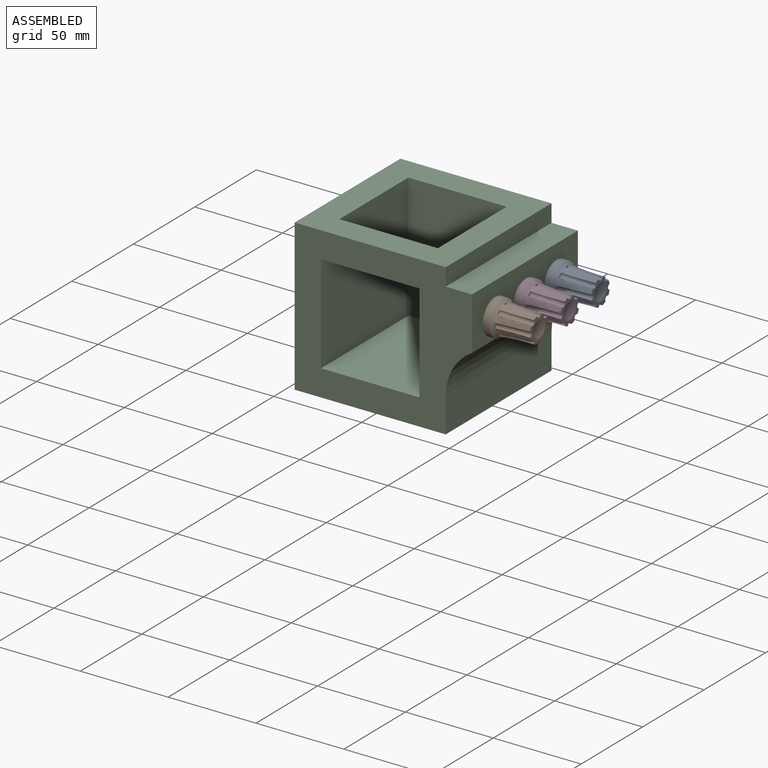
[diagram: assembled view]
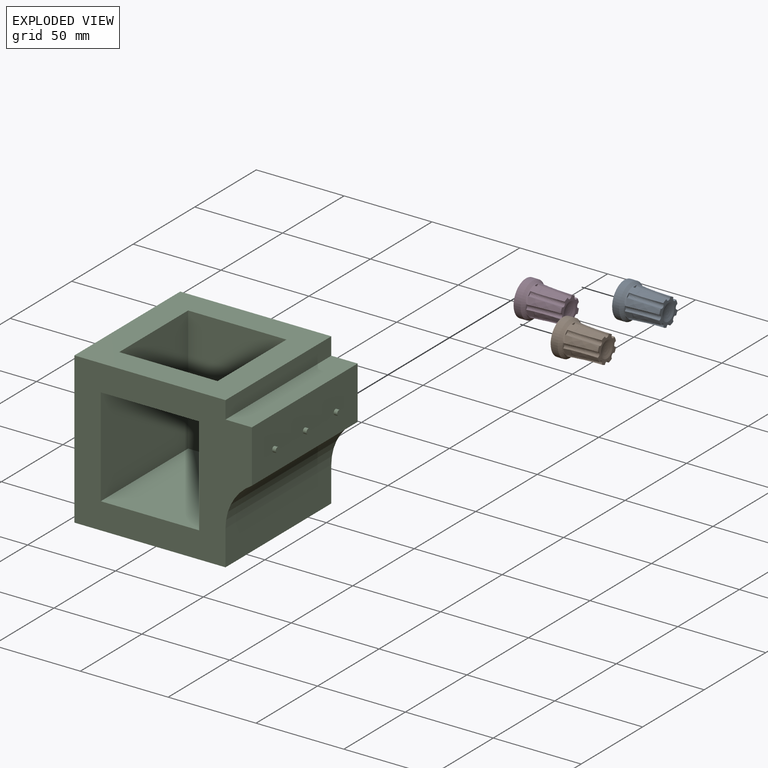
[diagram: exploded view]
GUIDED TOUR — MATED ASSEMBLY (Onshape document 9b8ae249166d23ae19b2d412, AutoMate assembly 9b8ae249166d23ae19b2d412_449f616fcffbd44381068511_5d4bd8179f84fa61b3cc5c4b_default)

This assembly has 4 components, labeled P0..P3 below (a component is one placed occurrence of a part; the same part can appear more than once), held together by 3 mates. A mate is a constraint between two components; its type names the relative motion it leaves free:
  REVOLUTE — leaves rotation about the listed axis free (a hinge).
Axis/direction vectors are unit vectors and 'through' points are millimeter coordinates, both in the assembly's world frame.

MATES
  1. REVOLUTE "Revolute 2": P2 <-> P1, axis (1.000, 0.000, 0.000) through (60.00, -25.00, 15.00) mm
  2. REVOLUTE "Revolute 3": P2 <-> P3, axis (1.000, 0.000, 0.000) through (58.00, 0.00, 15.00) mm
  3. REVOLUTE "Revolute 1": P2 <-> P0, axis (1.000, 0.000, 0.000) through (58.00, 25.00, 15.00) mm

ASSEMBLY ORDER
  1. P3 — the base component [order verified]
  2. P1 [order verified]
  3. P0 [order verified]
  4. P2 [order verified]
Order-tag legend:
  [order verified] — this step's position reverses a verified removal order: the component was checked to insert without passing through the ones already placed.

Of the 4 components, 1 carries the full construction recipe — the FeatureScript program that regenerates the part's solid from scratch; the rest are supplied as boundary geometry only.
Each toured component is shown spotlighted twice — in the assembled view, then in the exploded view, where a leader line traces a displaced component back to its assembled socket (saturated green if recipe-attached, orange if geometry-only; every other component desaturated gray) — followed by its recipe or geometry summary and the mates that hold it.
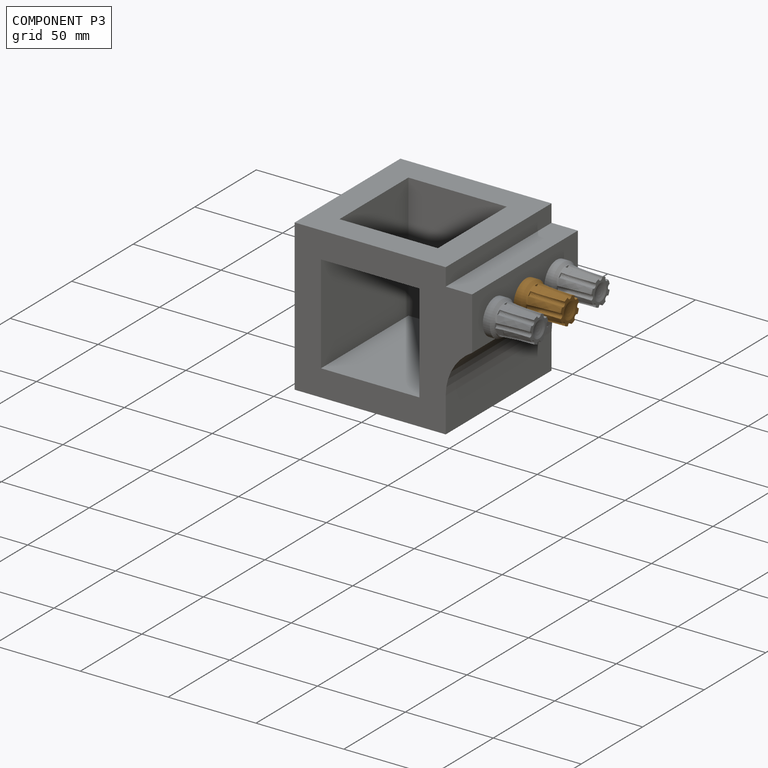
[diagram: component P3 — assembled]
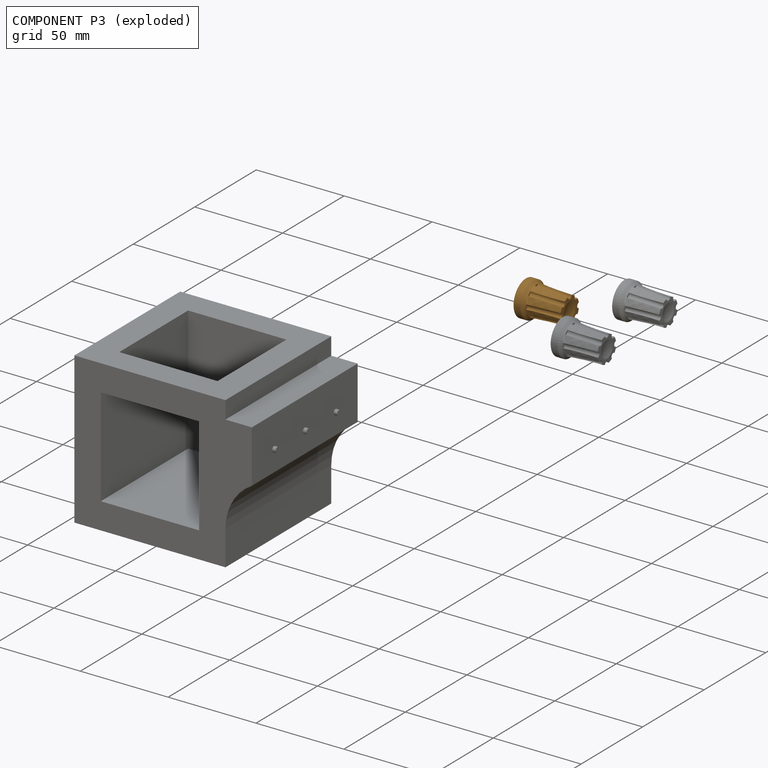
[diagram: component P3 — exploded]
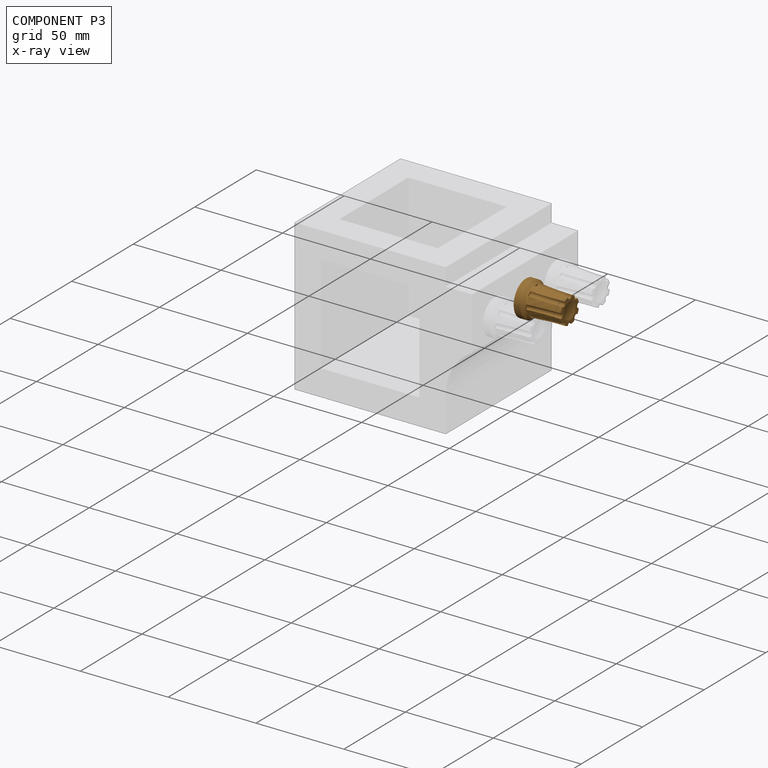
[diagram: component P3 — x-ray view]
COMPONENT P3 — geometry summary (no construction recipe available for this part):
  bounding box: 25.0 x 20.0 x 20.0 mm
  B-rep topology: 1 solid, 26 faces, 135 edges
  volume: 5079 mm^3 (51% of its bounding box)
  symmetry: 4-fold rotationally symmetric about the z axis; mirror-symmetric across its x mid-plane, y mid-plane
Held by: REVOLUTE mate "Revolute 3" to P2.
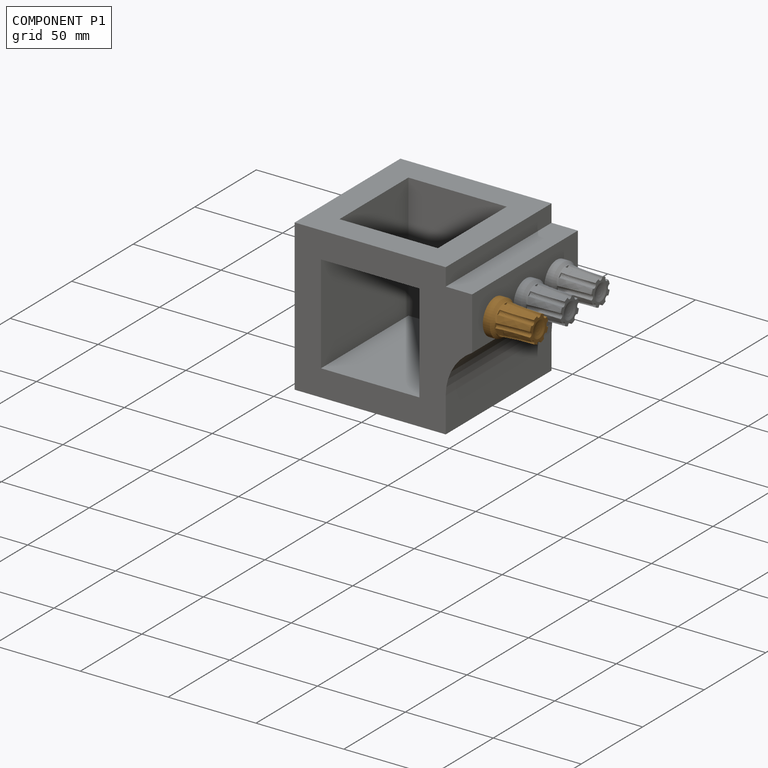
[diagram: component P1 — assembled]
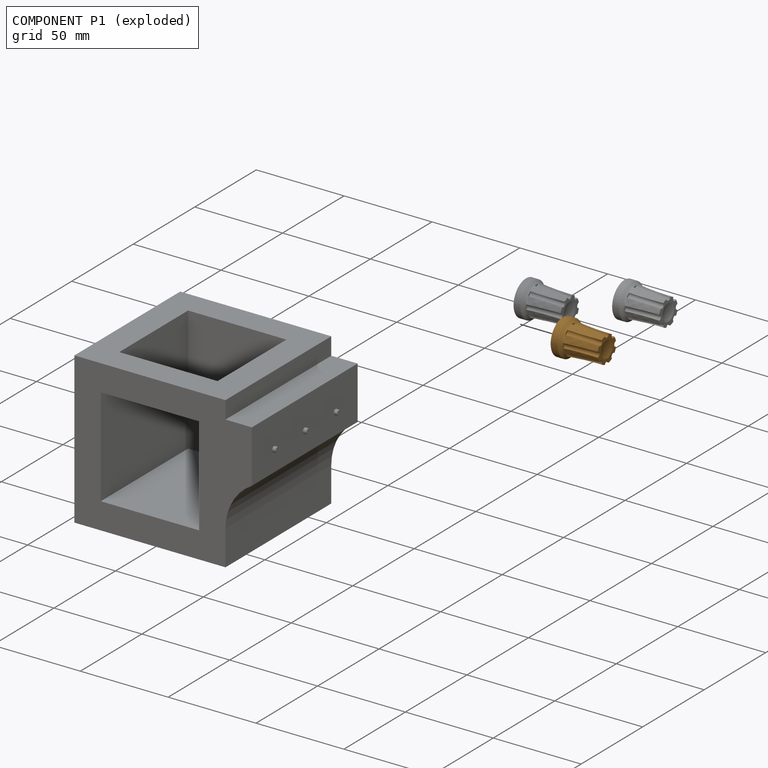
[diagram: component P1 — exploded]
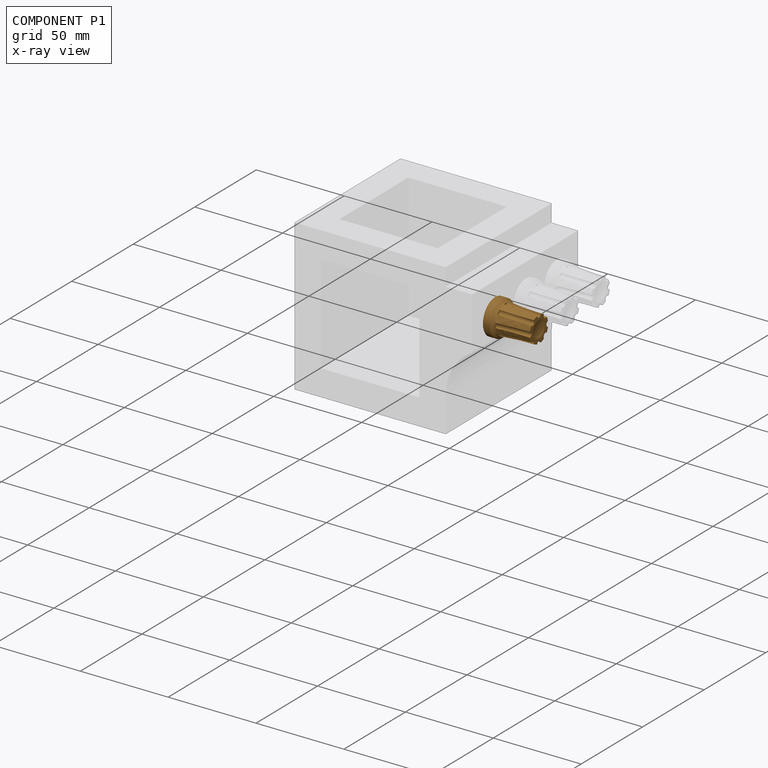
[diagram: component P1 — x-ray view]
COMPONENT P1 — geometry summary (no construction recipe available for this part):
  bounding box: 25.0 x 20.0 x 20.0 mm
  B-rep topology: 1 solid, 26 faces, 135 edges
  volume: 5079 mm^3 (51% of its bounding box)
  symmetry: 4-fold rotationally symmetric about the z axis; mirror-symmetric across its x mid-plane, y mid-plane
Held by: REVOLUTE mate "Revolute 2" to P2.
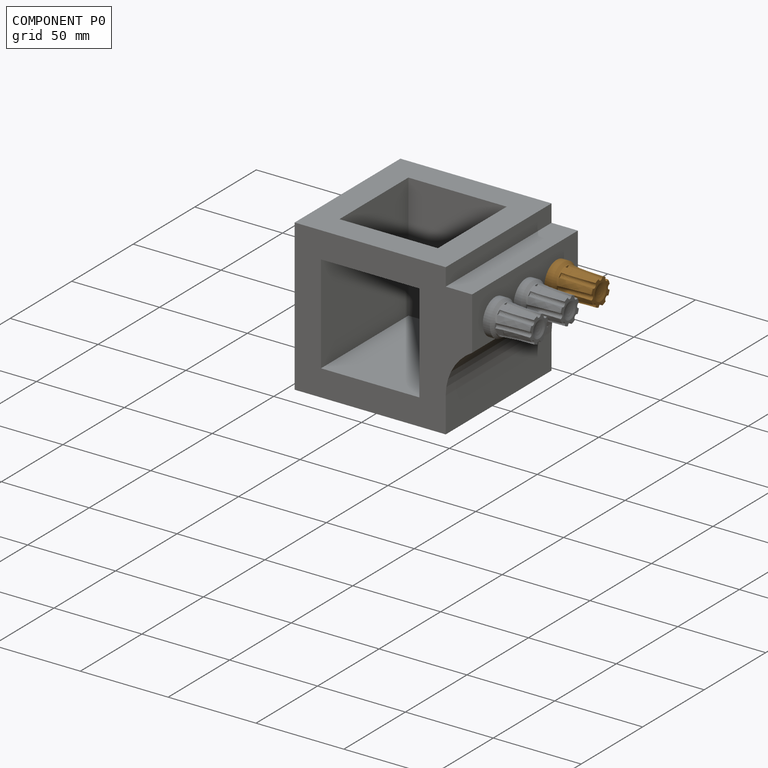
[diagram: component P0 — assembled]
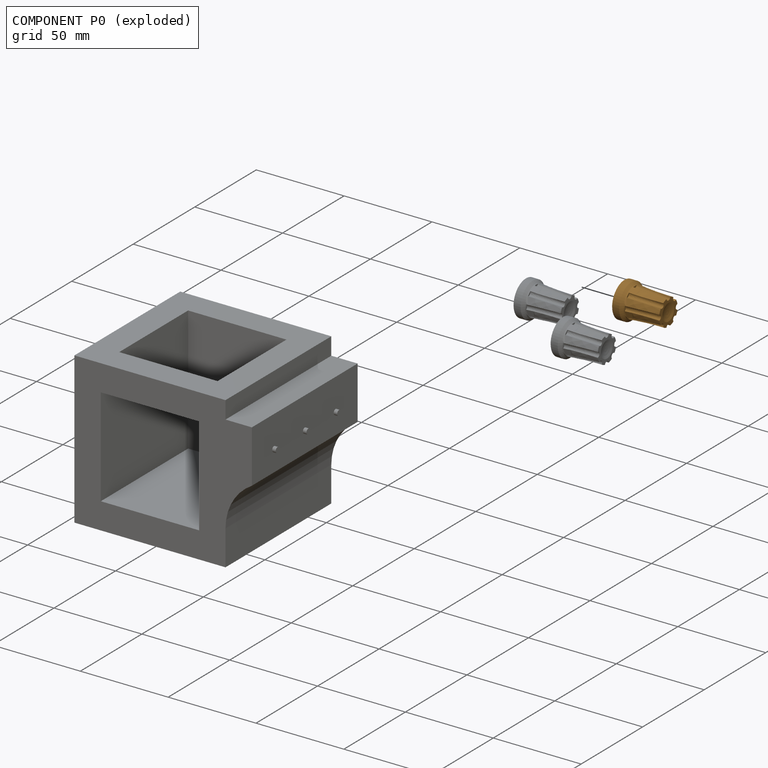
[diagram: component P0 — exploded]
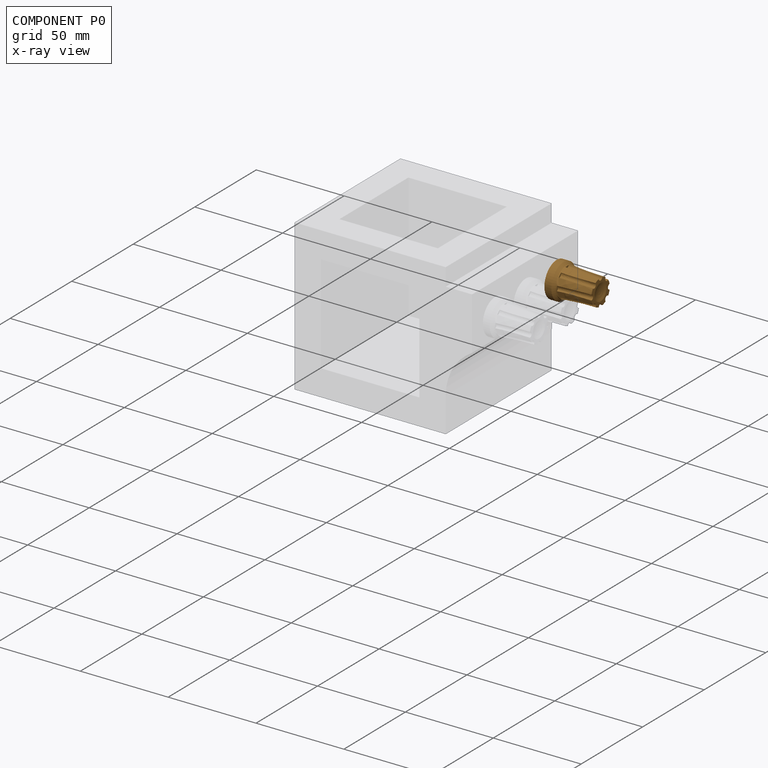
[diagram: component P0 — x-ray view]
COMPONENT P0 — geometry summary (no construction recipe available for this part):
  bounding box: 25.0 x 20.0 x 20.0 mm
  B-rep topology: 1 solid, 26 faces, 135 edges
  volume: 5079 mm^3 (51% of its bounding box)
  symmetry: 4-fold rotationally symmetric about the z axis; mirror-symmetric across its x mid-plane, y mid-plane
Held by: REVOLUTE mate "Revolute 1" to P2.
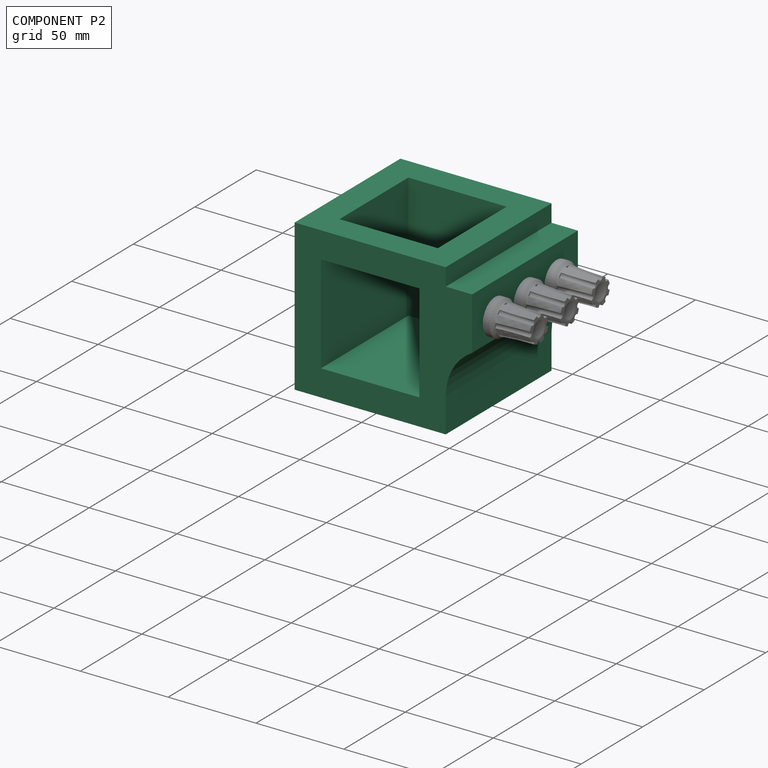
[diagram: component P2 — assembled]
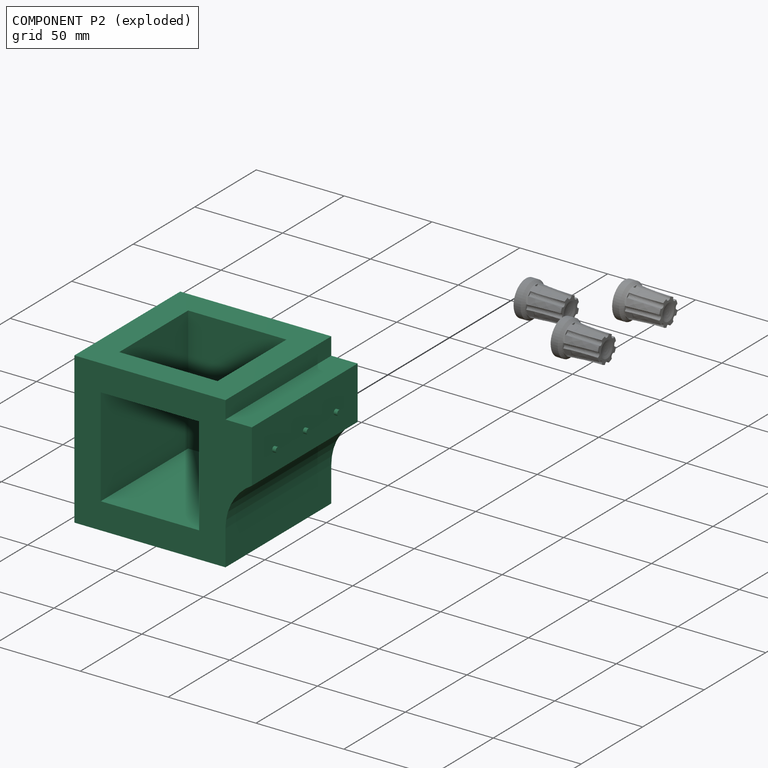
[diagram: component P2 — exploded]
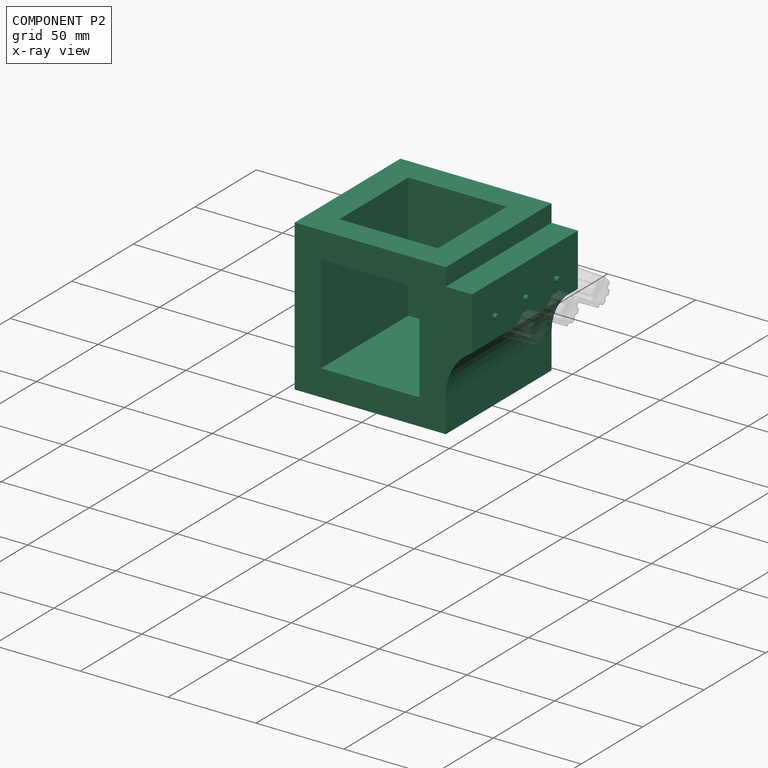
[diagram: component P2 — x-ray view]
COMPONENT P2 — recipe-attached (CADFS 00478353, mesh-verified: the recipe's output STEP matches this component's geometry to below the mesh-comparison resolution (tessellation chordal tolerance ~0.239 mm)).
Held by: REVOLUTE mate "Revolute 2" to P1; REVOLUTE mate "Revolute 3" to P3; REVOLUTE mate "Revolute 1" to P0.
Construction recipe (FeatureScript — the CAD program that rebuilds this solid; sketch coordinates are in the units given by the * unit suffixes, e.g. mm):

FeatureScript 1511;
import(path : "onshape/std/geometry.fs", version : "1511.0");
import(path : "onshape/std/common.fs", version : "1511.0");
const mm = millimeter;
const VERTEX = EntityType.VERTEX;
const EDGE = EntityType.EDGE;
const FACE = EntityType.FACE;
const BODY = EntityType.BODY;
function v(x, y){return vector(x, y);}
function OD(order){return orderDisambiguation(order);}
function OSD(set){return originalSetDisambiguation(set);}
function TD(topology){return topologyDisambiguation(topology);}
function TDD(query){return trueDependencyDisambiguation(query);}
function sQuery(a, b, c) {return sketchEntityQuery(a, b, c);}

annotation { "Feature Type Name" : "Feature", "Feature Type Description" : "" }
export const myFeature = defineFeature(function(context is Context, id is Id, definition is map)
    precondition{}
    {
        {
            var Q0;
            Q0=qCreatedBy(makeId("Top.planeOp"),FACE);
            var sketch = newSketch(context, id + "F0", { "sketchPlane" : qUnion([Q0])});
            skLineSegment(sketch, "E0", {"start": v(0, 0) * mm, "end": v(-43, 0) * mm});
            skLineSegment(sketch, "E1", {"start": v(-43, 0) * mm, "end": v(-43, 43) * mm});
            skLineSegment(sketch, "E2", {"start": v(-43, 43) * mm, "end": v(0, 43) * mm});
            skLineSegment(sketch, "E3", {"start": v(0, 43) * mm, "end": v(0, 0) * mm});
            skLineSegment(sketch, "E4.MirrorCS", {"start": v(43, 0) * mm, "end": v(43, 43) * mm});
            skLineSegment(sketch, "E5.MirrorCS", {"start": v(43, 43) * mm, "end": v(0, 43) * mm});
            skLineSegment(sketch, "E6.MirrorCS", {"start": v(43, -43) * mm, "end": v(0, -43) * mm});
            skLineSegment(sketch, "E7.MirrorCS", {"start": v(-43, -43) * mm, "end": v(0, -43) * mm});
            skLineSegment(sketch, "E8.MirrorCS", {"start": v(-43, 0) * mm, "end": v(-43, -43) * mm});
            skLineSegment(sketch, "E9.MirrorCS", {"start": v(43, 0) * mm, "end": v(43, -43) * mm});
            skSolve(sketch);
        }
        {
            var Q0;
            Q0 = qSketchRegion(id + "F0", true);
            var Q1;
            Q1=makeQuery(id+"F0.imprint","IMPRINT",FACE,{"disambiguationData":[TD([[makeQuery(id+"F0.imprint","IMPRINT",EDGE,{"derivedFrom":sQuery(id+"F0.wireOp",EDGE,"E0")}),-1.0]])]});
            extrude(context, id + "F1", {"entities" : qUnion([Q0, Q1]), "depth" : 43 * mm, "hasSecondDirection" : true, "secondDirectionOppositeDirection" : true, "secondDirectionDepth" : 43 * mm});
        }
        {
            var Q0;
            Q0=makeQuery(id+"F1.opExtrude","CAP_FACE",FACE,{"disambiguationData":[OSD([sQuery(id+"F0.wireOp",EDGE,"E1"),sQuery(id+"F0.wireOp",EDGE,"E2"),sQuery(id+"F0.wireOp",EDGE,"E4.MirrorCS"),sQuery(id+"F0.wireOp",EDGE,"E5.MirrorCS"),sQuery(id+"F0.wireOp",EDGE,"E6.MirrorCS"),sQuery(id+"F0.wireOp",EDGE,"E7.MirrorCS"),sQuery(id+"F0.wireOp",EDGE,"E8.MirrorCS"),sQuery(id+"F0.wireOp",EDGE,"E9.MirrorCS")])],"isStart":false});
            var sketch = newSketch(context, id + "F2", { "sketchPlane" : qUnion([Q0])});
            skLineSegment(sketch, "E10", {"start": v(0, 0) * mm, "end": v(0, 28) * mm});
            skLineSegment(sketch, "E11.bottom", {"start": v(0, 0) * mm, "end": v(-28, 0) * mm});
            skLineSegment(sketch, "E11.top", {"start": v(0, 28) * mm, "end": v(-28, 28) * mm});
            skLineSegment(sketch, "E11.right", {"start": v(-28, 0) * mm, "end": v(-28, 28) * mm});
            skLineSegment(sketch, "E12.MirrorCS", {"start": v(0, -28) * mm, "end": v(-28, -28) * mm});
            skLineSegment(sketch, "E13.MirrorCS", {"start": v(-28, 0) * mm, "end": v(-28, -28) * mm});
            skLineSegment(sketch, "E14.MirrorCS", {"start": v(28, 0) * mm, "end": v(28, 28) * mm});
            skLineSegment(sketch, "E15.MirrorCS", {"start": v(0, 28) * mm, "end": v(28, 28) * mm});
            skLineSegment(sketch, "E16.MirrorCS", {"start": v(0, -28) * mm, "end": v(28, -28) * mm});
            skLineSegment(sketch, "E17.MirrorCS", {"start": v(28, 0) * mm, "end": v(28, -28) * mm});
            skSolve(sketch);
        }
        {
            var Q0;
            Q0=makeQuery(id+"F2.imprint","IMPRINT",FACE,{"disambiguationData":[TD([[makeQuery(id+"F2.imprint","IMPRINT",EDGE,{"derivedFrom":sQuery(id+"F2.wireOp",EDGE,"E11.bottom")}),-1.0]])]});
            var Q1;
            Q1=makeQuery(id+"F2.imprint","IMPRINT",FACE,{"disambiguationData":[TD([[makeQuery(id+"F2.imprint","IMPRINT",EDGE,{"derivedFrom":sQuery(id+"F2.wireOp",EDGE,"E11.bottom")}),1.0]])]});
            extrude(context, id + "F3", {"entities" : qUnion([Q0, Q1]), "operationType" : NewBodyOperationType.REMOVE, "oppositeDirection" : true, "depth" : 71 * mm});
        }
        {
            var Q0;
            Q0=makeQuery(id+"F1.opExtrude","SWEPT_FACE",FACE,{"disambiguationData":[OSD([sQuery(id+"F0.wireOp",EDGE,"E6.MirrorCS"),sQuery(id+"F0.wireOp",EDGE,"E7.MirrorCS")])]});
            var sketch = newSketch(context, id + "F4", { "sketchPlane" : qUnion([Q0])});
            skLineSegment(sketch, "E18.bottom", {"start": v(0, 0) * mm, "end": v(-28, 0) * mm});
            skLineSegment(sketch, "E18.top", {"start": v(0, 28) * mm, "end": v(-28, 28) * mm});
            skLineSegment(sketch, "E18.left", {"start": v(0, 0) * mm, "end": v(0, 28) * mm});
            skLineSegment(sketch, "E18.right", {"start": v(-28, 0) * mm, "end": v(-28, 28) * mm});
            skLineSegment(sketch, "E19.MirrorCS", {"start": v(0, 28) * mm, "end": v(28, 28) * mm});
            skLineSegment(sketch, "E20.MirrorCS", {"start": v(28, 0) * mm, "end": v(28, 28) * mm});
            skLineSegment(sketch, "E21.MirrorCS", {"start": v(0, -28) * mm, "end": v(-28, -28) * mm});
            skLineSegment(sketch, "E22.MirrorCS", {"start": v(0, -28) * mm, "end": v(28, -28) * mm});
            skLineSegment(sketch, "E23.MirrorCS", {"start": v(-28, 0) * mm, "end": v(-28, -28) * mm});
            skLineSegment(sketch, "E24.MirrorCS", {"start": v(28, 0) * mm, "end": v(28, -28) * mm});
            skSolve(sketch);
        }
        {
            var Q0;
            Q0=makeQuery(id+"F4.imprint","IMPRINT",FACE,{"disambiguationData":[TD([[makeQuery(id+"F4.imprint","IMPRINT",EDGE,{"derivedFrom":sQuery(id+"F4.wireOp",EDGE,"E18.bottom")}),-1.0]])]});
            var Q1;
            Q1=makeQuery(id+"F4.imprint","IMPRINT",FACE,{"disambiguationData":[TD([[makeQuery(id+"F4.imprint","IMPRINT",EDGE,{"derivedFrom":sQuery(id+"F4.wireOp",EDGE,"E18.bottom")}),1.0]])]});
            extrude(context, id + "F5", {"entities" : qUnion([Q0, Q1]), "operationType" : NewBodyOperationType.REMOVE, "oppositeDirection" : true, "depth" : 71 * mm});
        }
        {
            var Q0;
            Q0=makeQuery(id+"F1.opExtrude","SWEPT_FACE",FACE,{"disambiguationData":[OSD([sQuery(id+"F0.wireOp",EDGE,"E4.MirrorCS"),sQuery(id+"F0.wireOp",EDGE,"E9.MirrorCS")])]});
            var sketch = newSketch(context, id + "F6", { "sketchPlane" : qUnion([Q0])});
            skLineSegment(sketch, "E25", {"start": v(0, 0) * mm, "end": v(0, 33) * mm});
            skPoint(sketch, "E25.endSnap0", {"position": v(0, 43) * mm});
            skLineSegment(sketch, "E26", {"start": v(0, 33) * mm, "end": v(43, 33) * mm});
            skLineSegment(sketch, "E27", {"start": v(43, 33) * mm, "end": v(-43, 33) * mm});
            skLineSegment(sketch, "E28", {"start": v(0, 0) * mm, "end": v(0, -23) * mm});
            skPoint(sketch, "E28.endSnap0", {"position": v(0, -43) * mm});
            skLineSegment(sketch, "E29", {"start": v(0, -23) * mm, "end": v(43, -23) * mm});
            skLineSegment(sketch, "E30", {"start": v(43, -23) * mm, "end": v(-43, -23) * mm});
            skSolve(sketch);
        }
        {
            var Q0;
            Q0 = qSketchRegion(id + "F6", true);
            var Q1;
            {var subQ2=sQuery(id+"F6.wireOp",EDGE,"E25");Q1=makeQuery(id+"F6.imprint","IMPRINT",FACE,{"disambiguationData":[TD([[makeQuery(id+"F6.imprint","IMPRINT",EDGE,{"derivedFrom":subQ2}),1.0]])]});}
            var Q2;
            {var subQ5=sQuery(id+"F6.wireOp",EDGE,"E25");Q2=makeQuery(id+"F6.imprint","IMPRINT",FACE,{"disambiguationData":[TD([[makeQuery(id+"F6.imprint","IMPRINT",EDGE,{"derivedFrom":subQ5}),-1.0]])]});}
            extrude(context, id + "F7", {"entities" : qUnion([Q0, Q1, Q2]), "operationType" : NewBodyOperationType.ADD, "depth" : 15 * mm});
        }
        {
            var Q0;
            {var subQ0=sQuery(id+"F0.wireOp",EDGE,"E6.MirrorCS");Q0=makeQuery(id+"F7.boolean.opBoolean","MERGE",FACE,{"derivedFrom":[makeQuery(id+"F1.opExtrude","SWEPT_FACE",FACE,{"disambiguationData":[OSD([subQ0,sQuery(id+"F0.wireOp",EDGE,"E7.MirrorCS")])]}),makeQuery(id+"F7.opExtrude","SWEPT_FACE",FACE,{"disambiguationData":[OSD([subQ0,sQuery(id+"F0.wireOp",EDGE,"E9.MirrorCS")])]})]});}
            var sketch = newSketch(context, id + "F8", { "sketchPlane" : qUnion([Q0])});
            skLineSegment(sketch, "E31", {"start": v(43, -43) * mm, "end": v(68, -43) * mm});
            skLineSegment(sketch, "E32", {"start": v(68, -43) * mm, "end": v(68, 7) * mm});
            skLineSegment(sketch, "E33", {"start": v(73, 7) * mm, "end": v(68, 7) * mm});
            skLineSegment(sketch, "E34", {"start": v(43, -23) * mm, "end": v(43, -43) * mm});
            skPoint(sketch, "E35.visualSharp", {"position": v(43, 7) * mm});
            skArc(sketch, "E35.filletArc", {"start": v(73, 7) * mm, "mid": v(51.79, -1.79) * mm, "end": v(43, -23) * mm});
            skSolve(sketch);
        }
        {
            var Q0;
            {var subQ0=sQuery(id+"F8.wireOp",EDGE,"E33");Q0=makeQuery(id+"F8.imprint","IMPRINT",FACE,{"disambiguationData":[TD([[makeQuery(id+"F8.imprint","IMPRINT",EDGE,{"derivedFrom":subQ0}),1.0]])]});}
            var Q1;
            {var subQ1=sQuery(id+"F0.wireOp",EDGE,"E9.MirrorCS");var subQ2=sQuery(id+"F0.wireOp",EDGE,"E6.MirrorCS");var subQ3=makeQuery(id+"F7.opExtrude","SWEPT_EDGE",EDGE,{"disambiguationData":[OSD([subQ2,subQ1,sQuery(id+"F6.wireOp",EDGE,"E30")])]});Q1=makeQuery(id+"F8.imprint","IMPRINT",FACE,{"disambiguationData":[TD([[makeQuery(id+"F8.imprint","IMPRINT",EDGE,{"derivedFrom":subQ3}),-1.0]])]});}
            extrude(context, id + "F9", {"entities" : qUnion([Q0, Q1]), "operationType" : NewBodyOperationType.REMOVE, "oppositeDirection" : true, "depth" : 100 * mm});
        }
        {
            var Q0;
            Q0=makeQuery(id+"F7.opExtrude","CAP_FACE",FACE,{"disambiguationData":[OSD([sQuery(id+"F0.wireOp",EDGE,"E4.MirrorCS"),sQuery(id+"F0.wireOp",EDGE,"E5.MirrorCS"),sQuery(id+"F0.wireOp",EDGE,"E6.MirrorCS"),sQuery(id+"F0.wireOp",EDGE,"E9.MirrorCS"),sQuery(id+"F6.wireOp",EDGE,"E27"),sQuery(id+"F6.wireOp",EDGE,"E30")])],"isStart":false});
            var sketch = newSketch(context, id + "F10", { "sketchPlane" : qUnion([Q0])});
            skLineSegment(sketch, "E36", {"start": v(0, 0) * mm, "end": v(0, 15) * mm});
            skPoint(sketch, "E36.endSnap0", {"position": v(0, 33) * mm});
            skLineSegment(sketch, "E37", {"start": v(0, 15) * mm, "end": v(-25, 15) * mm});
            skLineSegment(sketch, "E38.MirrorCS", {"start": v(0, 15) * mm, "end": v(25, 15) * mm});
            skCircle(sketch, "E39", {"center": v(-25, 15) * mm, "radius": 1.5 * mm});
            skCircle(sketch, "E40", {"center": v(25, 15) * mm, "radius": 1.5 * mm});
            skCircle(sketch, "E41", {"center": v(0, 15) * mm, "radius": 1.5 * mm});
            skSolve(sketch);
        }
        {
            var Q0;
            {var subQ1=sQuery(id+"F10.wireOp",EDGE,"E36");var subQ3=sQuery(id+"F10.wireOp",EDGE,"E41");var subQ4=makeQuery(id+"F10.imprint","INTERSECT",VERTEX,{"derivedFrom":[subQ1,subQ3]});Q0=makeQuery(id+"F10.imprint","IMPRINT",FACE,{"disambiguationData":[TD([[makeQuery(id+"F10.imprint","IMPRINT",EDGE,{"disambiguationData":[TD([[subQ4,1.0]])],"derivedFrom":subQ3}),1.0]])]});}
            var Q1;
            {var subQ1=sQuery(id+"F10.wireOp",EDGE,"E37");var subQ3=sQuery(id+"F10.wireOp",EDGE,"E41");var subQ4=makeQuery(id+"F10.imprint","INTERSECT",VERTEX,{"derivedFrom":[subQ1,subQ3]});Q1=makeQuery(id+"F10.imprint","IMPRINT",FACE,{"disambiguationData":[TD([[makeQuery(id+"F10.imprint","IMPRINT",EDGE,{"disambiguationData":[TD([[subQ4,1.0]])],"derivedFrom":subQ3}),1.0]])]});}
            var Q2;
            {var subQ1=sQuery(id+"F10.wireOp",EDGE,"E36");var subQ3=sQuery(id+"F10.wireOp",EDGE,"E41");var subQ4=makeQuery(id+"F10.imprint","INTERSECT",VERTEX,{"derivedFrom":[subQ1,subQ3]});Q2=makeQuery(id+"F10.imprint","IMPRINT",FACE,{"disambiguationData":[TD([[makeQuery(id+"F10.imprint","IMPRINT",EDGE,{"disambiguationData":[TD([[subQ4,-1.0]])],"derivedFrom":subQ3}),1.0]])]});}
            var Q3;
            Q3=makeQuery(id+"F10.imprint","IMPRINT",FACE,{"disambiguationData":[TD([[makeQuery(id+"F10.imprint","IMPRINT",EDGE,{"derivedFrom":sQuery(id+"F10.wireOp",EDGE,"E39")}),1.0]])]});
            var Q4;
            Q4=makeQuery(id+"F10.imprint","IMPRINT",FACE,{"disambiguationData":[TD([[makeQuery(id+"F10.imprint","IMPRINT",EDGE,{"derivedFrom":sQuery(id+"F10.wireOp",EDGE,"E40")}),1.0]])]});
            extrude(context, id + "F11", {"entities" : qUnion([Q0, Q1, Q2, Q3, Q4]), "operationType" : NewBodyOperationType.ADD, "depth" : 2 * mm});
        }
    });
PROVENANCE & LICENSES
Assembly (occurrences, transforms, mates, per-part STEP geometry): AutoMate dataset, Zenodo record 7776208, CC0.
Construction recipes: CADFS (HuggingFace VladPyatov/CADFS, CC-BY-4.0, layered over the ABC dataset), FeatureScript reconstruction programs keyed by ABC model id.
Join: ABC meta listings map ABC model id -> Onshape documentId; within a shared document, parts are matched by geometric signature (bounding-box dims + volume at 0.1% relative tolerance, exact B-rep face/solid counts).
Verification: 1 of this assembly's 4 components carries a recipe attachment, and every attachment is mesh-verified: the CADFS STEP and the AutoMate member STEP were compared as meshes in their shared local frame (symmetric sampled-point-to-mesh distance); worst across the 1 attachment: below the mesh-comparison resolution (tessellation chordal tolerance ~0.239 mm) on a 159 mm part.
Renders: orthographic iso camera (az 35 / el 25); the floor grid conveys scale (grid pitch printed in each image; no ruler). In the exploded view each component is displaced by its stored offset vector: the offsets alone carry the explosion direction (mate normal/axis signs are not orientation cues and do not encode it), and separation distances are assigned per mate-chain, not proportionally to assembly-order depth.
